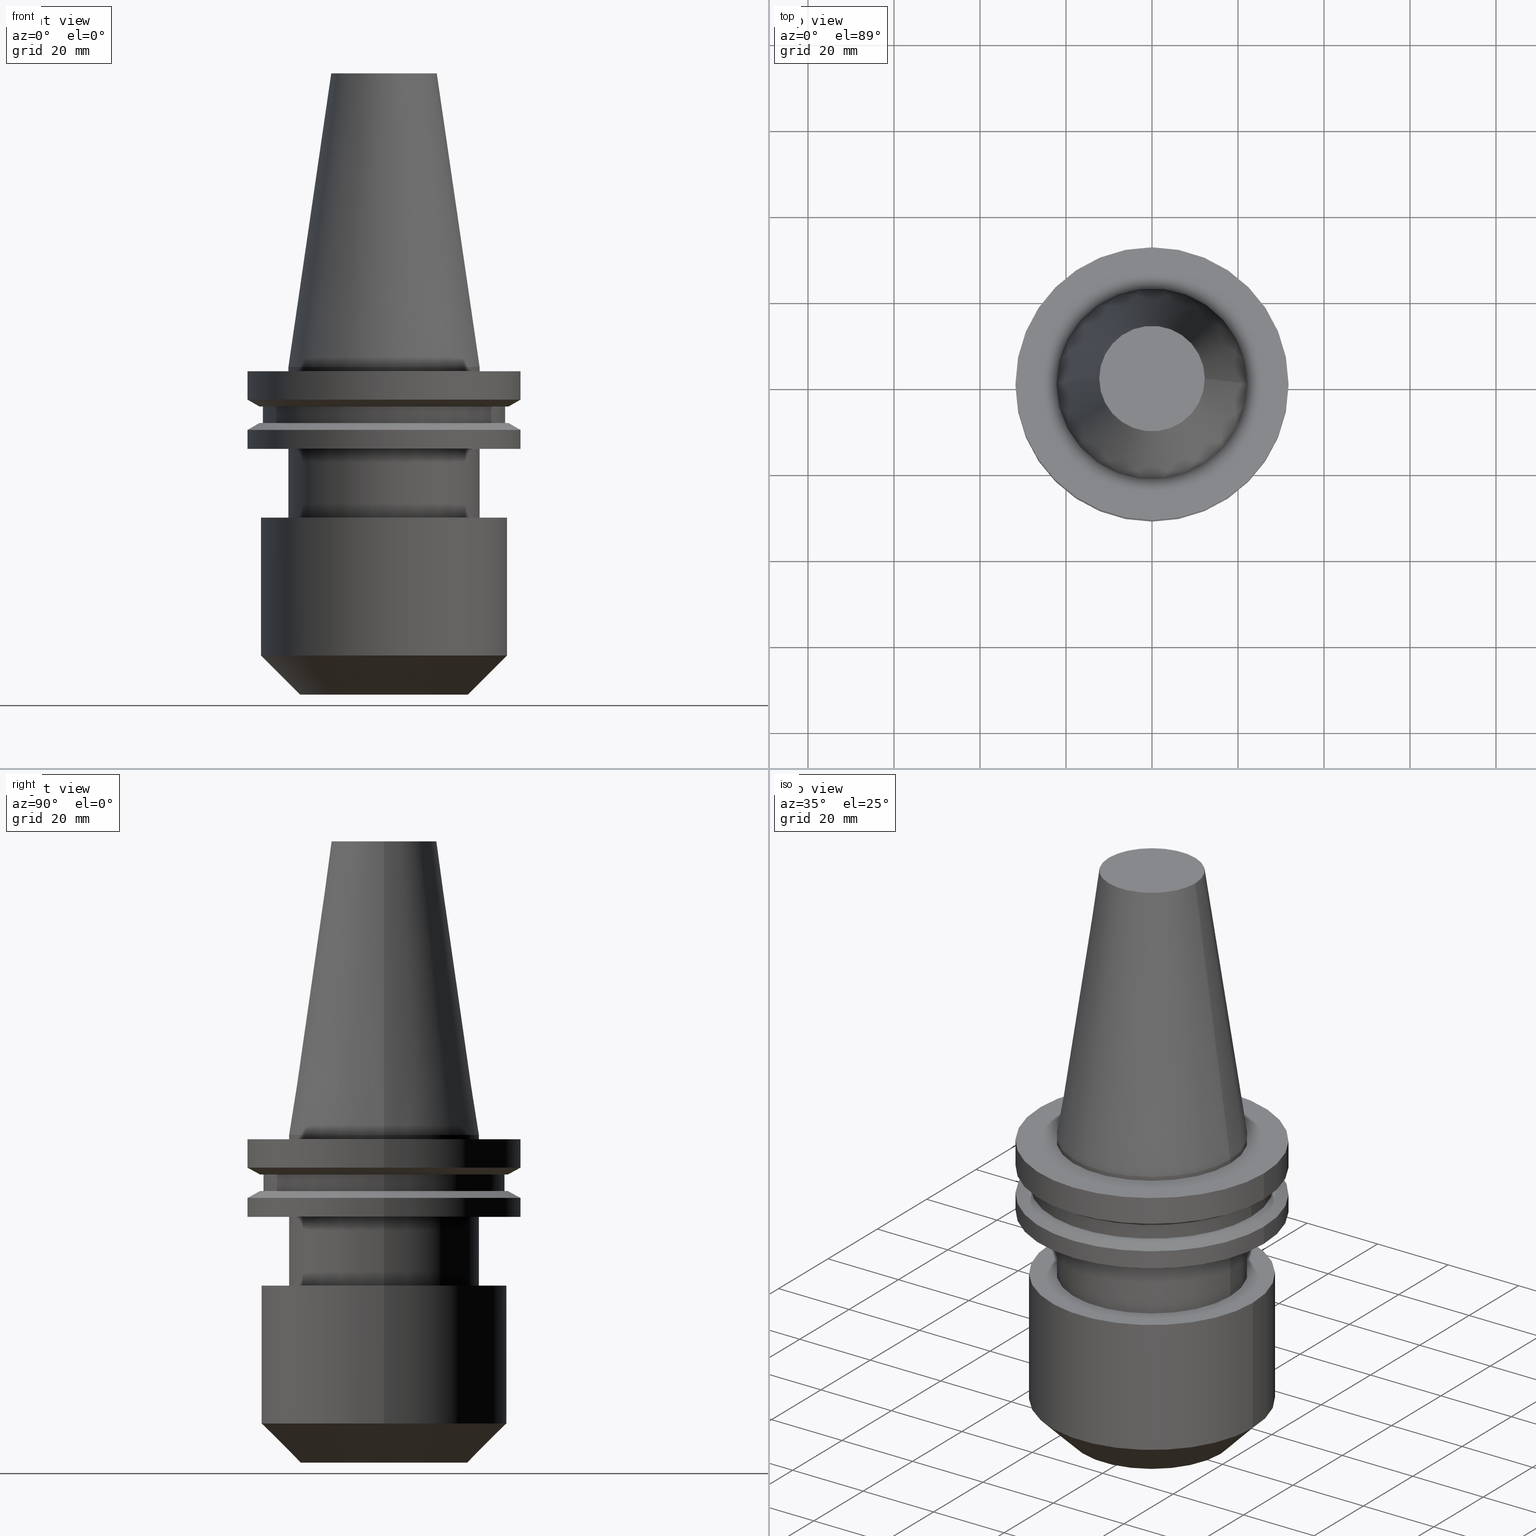
[diagram: canonical four-view strip — front | top / right | iso, engineering-drawing reading convention]
A machine part, canonical four-view strip (front | top / right | iso — engineering-drawing reading convention). The complete STEP part file that produces these views, byte-faithful:
ISO-10303-21;
HEADER;
FILE_DESCRIPTION (( 'STEP AP203' ),
    '1' );
FILE_NAME ('BCV40-EM_1_000-3.STEP',
    '2022-02-23T14:50:14',
    ( '' ),
    ( '' ),
    'SwSTEP 2.0',
    'SolidWorks 2021',
    '' );
FILE_SCHEMA (( 'CONFIG_CONTROL_DESIGN' ));
ENDSEC;

DATA;
#1 = DIRECTION ( 'NONE',  ( 1.000000000000000000, 0.000000000000000000, 0.000000000000000000 ) ) ;
#2 = ORIENTED_EDGE ( 'NONE', *, *, #613, .F. ) ;
#3 = CC_DESIGN_APPROVAL ( #452, ( #542 ) ) ;
#4 = EDGE_CURVE ( 'NONE', #633, #787, #122, .T. ) ;
#5 = CALENDAR_DATE ( 2022, 23, 2 ) ;
#6 = DIRECTION ( 'NONE',  ( -0.000000000000000000, -0.000000000000000000, 1.000000000000000000 ) ) ;
#7 = DIRECTION ( 'NONE',  ( 1.000000000000000000, 0.000000000000000000, 0.000000000000000000 ) ) ;
#8 = ORIENTED_EDGE ( 'NONE', *, *, #667, .F. ) ;
#9 = VECTOR ( 'NONE', #96, 1000.000000000000000 ) ;
#10 = LINE ( 'NONE', #189, #163 ) ;
#11 = CIRCLE ( 'NONE', #93, 28.60000000000000142 ) ;
#12 = CARTESIAN_POINT ( 'NONE',  ( 0.000000000000000000, 0.000000000000000000, 0.000000000000000000 ) ) ;
#13 = VERTEX_POINT ( 'NONE', #464 ) ;
#14 = DIRECTION ( 'NONE',  ( -0.000000000000000000, -0.000000000000000000, 1.000000000000000000 ) ) ;
#15 = EDGE_CURVE ( 'NONE', #500, #750, #730, .T. ) ;
#16 = CARTESIAN_POINT ( 'NONE',  ( 0.000000000000000000, 0.000000000000000000, 68.25000000000000000 ) ) ;
#17 = VERTEX_POINT ( 'NONE', #654 ) ;
#18 = DIRECTION ( 'NONE',  ( 0.000000000000000000, 0.000000000000000000, -1.000000000000000000 ) ) ;
#19 = FACE_OUTER_BOUND ( 'NONE', #149, .T. ) ;
#20 = EDGE_CURVE ( 'NONE', #368, #530, #157, .T. ) ;
#21 = VERTEX_POINT ( 'NONE', #722 ) ;
#22 = AXIS2_PLACEMENT_3D ( 'NONE', #12, #726, #205 ) ;
#23 = CARTESIAN_POINT ( 'NONE',  ( 0.000000000000000000, 0.000000000000000000, -9.204999999999991189 ) ) ;
#24 = CIRCLE ( 'NONE', #767, 12.69999999999999929 ) ;
#25 = DIRECTION ( 'NONE',  ( 1.000000000000000000, 0.000000000000000000, 0.000000000000000000 ) ) ;
#26 = APPLICATION_CONTEXT ( 'configuration controlled 3d designs of mechanical parts and assemblies' ) ;
#27 = EDGE_LOOP ( 'NONE', ( #358, #426, #43, #303 ) ) ;
#28 = CARTESIAN_POINT ( 'NONE',  ( 0.000000000000000000, 0.000000000000000000, -19.04999999999999716 ) ) ;
#29 = DIRECTION ( 'NONE',  ( -0.000000000000000000, -0.000000000000000000, 1.000000000000000000 ) ) ;
#30 = VERTEX_POINT ( 'NONE', #252 ) ;
#31 = EDGE_CURVE ( 'NONE', #13, #232, #587, .T. ) ;
#32 = FACE_OUTER_BOUND ( 'NONE', #214, .T. ) ;
#33 = CARTESIAN_POINT ( 'NONE',  ( 28.60000000000000142, 0.000000000000000000, 0.000000000000000000 ) ) ;
#34 = VERTEX_POINT ( 'NONE', #275 ) ;
#35 = DIRECTION ( 'NONE',  ( -0.000000000000000000, -0.000000000000000000, 1.000000000000000000 ) ) ;
#36 = CARTESIAN_POINT ( 'NONE',  ( 22.22500000000000142, 0.000000000000000000, 68.25000000000000000 ) ) ;
#37 = AXIS2_PLACEMENT_3D ( 'NONE', #469, #785, #131 ) ;
#38 = ADVANCED_FACE ( 'NONE', ( #665 ), #783, .F. ) ;
#39 = ORIENTED_EDGE ( 'NONE', *, *, #653, .T. ) ;
#40 = CIRCLE ( 'NONE', #228, 19.49999999999997158 ) ;
#41 = DIRECTION ( 'NONE',  ( -0.000000000000000000, -0.000000000000000000, 1.000000000000000000 ) ) ;
#42 = ADVANCED_FACE ( 'NONE', ( #325, #190 ), #671, .F. ) ;
#43 = ORIENTED_EDGE ( 'NONE', *, *, #197, .F. ) ;
#44 = LOCAL_TIME ( 8, 50, 14.00000000000000000, #196 ) ;
#45 = DIRECTION ( 'NONE',  ( 1.000000000000000000, 0.000000000000000000, 0.000000000000000000 ) ) ;
#46 = ORIENTED_EDGE ( 'NONE', *, *, #631, .F. ) ;
#47 = EDGE_CURVE ( 'NONE', #500, #641, #339, .T. ) ;
#48 = DIRECTION ( 'NONE',  ( -0.000000000000000000, -0.000000000000000000, 1.000000000000000000 ) ) ;
#49 = CARTESIAN_POINT ( 'NONE',  ( 0.000000000000000000, 0.000000000000000000, -1.000000000000000888 ) ) ;
#50 = ORIENTED_EDGE ( 'NONE', *, *, #95, .T. ) ;
#51 = AXIS2_PLACEMENT_3D ( 'NONE', #558, #356, #622 ) ;
#52 = AXIS2_PLACEMENT_3D ( 'NONE', #125, #6, #57 ) ;
#53 = DIRECTION ( 'NONE',  ( -0.000000000000000000, -0.000000000000000000, 1.000000000000000000 ) ) ;
#54 = DIRECTION ( 'NONE',  ( 0.000000000000000000, 0.000000000000000000, -1.000000000000000000 ) ) ;
#55 = ORIENTED_EDGE ( 'NONE', *, *, #631, .T. ) ;
#56 = EDGE_CURVE ( 'NONE', #34, #396, #808, .T. ) ;
#57 = DIRECTION ( 'NONE',  ( 1.000000000000000000, 0.000000000000000000, 0.000000000000000000 ) ) ;
#58 = LOCAL_TIME ( 8, 50, 14.00000000000000000, #74 ) ;
#59 = ORIENTED_EDGE ( 'NONE', *, *, #15, .F. ) ;
#60 = DIRECTION ( 'NONE',  ( 0.000000000000000000, -0.000000000000000000, 1.000000000000000000 ) ) ;
#61 = CARTESIAN_POINT ( 'NONE',  ( -28.17999999999999972, 3.451054679997241634E-15, 68.25000000000000000 ) ) ;
#62 = EDGE_LOOP ( 'NONE', ( #320, #138, #206, #491 ) ) ;
#63 = VECTOR ( 'NONE', #53, 1000.000000000000000 ) ;
#64 = APPROVAL_DATE_TIME ( #124, #155 ) ;
#65 = AXIS2_PLACEMENT_3D ( 'NONE', #811, #749, #166 ) ;
#66 = DIRECTION ( 'NONE',  ( 1.000000000000000000, 0.000000000000000000, 0.000000000000000000 ) ) ;
#67 = CARTESIAN_POINT ( 'NONE',  ( 0.000000000000000000, 0.000000000000000000, -76.20000000000000284 ) ) ;
#68 = PRODUCT_DEFINITION ( 'UNKNOWN', '', #542, #435 ) ;
#69 = ORIENTED_EDGE ( 'NONE', *, *, #115, .T. ) ;
#70 = DIRECTION ( 'NONE',  ( -0.000000000000000000, -0.000000000000000000, 1.000000000000000000 ) ) ;
#71 = CARTESIAN_POINT ( 'NONE',  ( 0.000000000000000000, 0.000000000000000000, 68.25000000000000000 ) ) ;
#72 = VERTEX_POINT ( 'NONE', #268 ) ;
#73 = EDGE_CURVE ( 'NONE', #723, #286, #251, .T. ) ;
#74 = COORDINATED_UNIVERSAL_TIME_OFFSET ( 6, 0, .BEHIND. ) ;
#75 = DIRECTION ( 'NONE',  ( -0.8660254037844387076, 0.000000000000000000, -0.4999999999999998890 ) ) ;
#76 = DIRECTION ( 'NONE',  ( 1.000000000000000000, 0.000000000000000000, 0.000000000000000000 ) ) ;
#77 = DIRECTION ( 'NONE',  ( 1.000000000000000000, 0.000000000000000000, 0.000000000000000000 ) ) ;
#78 = VECTOR ( 'NONE', #302, 1000.000000000000000 ) ;
#79 = DIRECTION ( 'NONE',  ( -0.000000000000000000, -0.000000000000000000, 1.000000000000000000 ) ) ;
#80 = ORIENTED_EDGE ( 'NONE', *, *, #411, .T. ) ;
#81 = CYLINDRICAL_SURFACE ( 'NONE', #51, 12.69999999999999929 ) ;
#82 = EDGE_CURVE ( 'NONE', #361, #723, #338, .T. ) ;
#83 = DIRECTION ( 'NONE',  ( -0.000000000000000000, -0.000000000000000000, 1.000000000000000000 ) ) ;
#84 = ORIENTED_EDGE ( 'NONE', *, *, #823, .T. ) ;
#85 = AXIS2_PLACEMENT_3D ( 'NONE', #110, #374, #772 ) ;
#86 = DIRECTION ( 'NONE',  ( 1.000000000000000000, 0.000000000000000000, 0.000000000000000000 ) ) ;
#87 = CARTESIAN_POINT ( 'NONE',  ( 12.69999999999999929, 0.000000000000000000, -35.04999999999999716 ) ) ;
#88 = ORIENTED_EDGE ( 'NONE', *, *, #769, .F. ) ;
#89 = AXIS2_PLACEMENT_3D ( 'NONE', #67, #137, #330 ) ;
#90 = CARTESIAN_POINT ( 'NONE',  ( 28.97919780457007732, 0.000000000000000000, -9.205000000000005400 ) ) ;
#91 = AXIS2_PLACEMENT_3D ( 'NONE', #309, #229, #99 ) ;
#92 = DIRECTION ( 'NONE',  ( 0.8660254037844387076, 1.060575238724906915E-16, -0.4999999999999998890 ) ) ;
#93 = AXIS2_PLACEMENT_3D ( 'NONE', #850, #533, #454 ) ;
#94 = ORIENTED_EDGE ( 'NONE', *, *, #497, .T. ) ;
#95 = EDGE_CURVE ( 'NONE', #17, #735, #668, .T. ) ;
#96 = DIRECTION ( 'NONE',  ( 0.8660254037844389297, 0.000000000000000000, 0.4999999999999995004 ) ) ;
#97 = FACE_OUTER_BOUND ( 'NONE', #635, .T. ) ;
#98 = VERTEX_POINT ( 'NONE', #459 ) ;
#99 = DIRECTION ( 'NONE',  ( 1.000000000000000000, 0.000000000000000000, 0.000000000000000000 ) ) ;
#100 = LINE ( 'NONE', #36, #419 ) ;
#101 = ORIENTED_EDGE ( 'NONE', *, *, #840, .F. ) ;
#102 = CARTESIAN_POINT ( 'NONE',  ( -31.75000000000000000, 3.888253587292846476E-15, 68.25000000000000000 ) ) ;
#103 = EDGE_CURVE ( 'NONE', #21, #456, #446, .T. ) ;
#104 = LINE ( 'NONE', #363, #78 ) ;
#105 = ORIENTED_EDGE ( 'NONE', *, *, #433, .F. ) ;
#106 = DIRECTION ( 'NONE',  ( -0.000000000000000000, -0.000000000000000000, 1.000000000000000000 ) ) ;
#107 = ADVANCED_FACE ( 'NONE', ( #534 ), #792, .T. ) ;
#108 = DIRECTION ( 'NONE',  ( -0.000000000000000000, -0.000000000000000000, 1.000000000000000000 ) ) ;
#109 = ORIENTED_EDGE ( 'NONE', *, *, #784, .F. ) ;
#110 = CARTESIAN_POINT ( 'NONE',  ( 0.000000000000000000, 0.000000000000000000, 0.000000000000000000 ) ) ;
#111 = DIRECTION ( 'NONE',  ( 0.000000000000000000, 0.000000000000000000, -1.000000000000000000 ) ) ;
#112 = ORIENTED_EDGE ( 'NONE', *, *, #526, .T. ) ;
#113 = DIRECTION ( 'NONE',  ( -1.000000000000000000, 0.000000000000000000, 0.000000000000000000 ) ) ;
#114 = ORIENTED_EDGE ( 'NONE', *, *, #359, .T. ) ;
#115 = EDGE_CURVE ( 'NONE', #570, #696, #560, .T. ) ;
#116 = AXIS2_PLACEMENT_3D ( 'NONE', #623, #804, #223 ) ;
#117 = AXIS2_PLACEMENT_3D ( 'NONE', #747, #212, #341 ) ;
#118 = PERSON_AND_ORGANIZATION_ROLE ( 'creator' ) ;
#119 = FACE_OUTER_BOUND ( 'NONE', #372, .T. ) ;
#120 = ORIENTED_EDGE ( 'NONE', *, *, #411, .F. ) ;
#121 = FACE_OUTER_BOUND ( 'NONE', #584, .T. ) ;
#122 = LINE ( 'NONE', #133, #475 ) ;
#123 = ORIENTED_EDGE ( 'NONE', *, *, #796, .F. ) ;
#124 = DATE_AND_TIME ( #5, #317 ) ;
#125 = CARTESIAN_POINT ( 'NONE',  ( 0.000000000000000000, 0.000000000000000000, -7.605276606597335842 ) ) ;
#126 = EDGE_CURVE ( 'NONE', #819, #13, #791, .T. ) ;
#127 = CARTESIAN_POINT ( 'NONE',  ( -12.69999999999999929, 1.555301434917138433E-15, 0.000000000000000000 ) ) ;
#128 = ORIENTED_EDGE ( 'NONE', *, *, #571, .F. ) ;
#129 = VECTOR ( 'NONE', #438, 1000.000000000000000 ) ;
#130 = PERSON_AND_ORGANIZATION ( #547, #802 ) ;
#131 = DIRECTION ( 'NONE',  ( 1.000000000000000000, 0.000000000000000000, 0.000000000000000000 ) ) ;
#132 = EDGE_CURVE ( 'NONE', #456, #21, #778, .T. ) ;
#133 = CARTESIAN_POINT ( 'NONE',  ( 19.49999999999997158, 0.000000000000000000, -76.20000000000000284 ) ) ;
#134 = ORIENTED_EDGE ( 'NONE', *, *, #132, .T. ) ;
#135 = CALENDAR_DATE ( 2022, 23, 2 ) ;
#136 = DIRECTION ( 'NONE',  ( -0.000000000000000000, -0.000000000000000000, 1.000000000000000000 ) ) ;
#137 = DIRECTION ( 'NONE',  ( -0.000000000000000000, -0.000000000000000000, 1.000000000000000000 ) ) ;
#138 = ORIENTED_EDGE ( 'NONE', *, *, #840, .T. ) ;
#139 = CARTESIAN_POINT ( 'NONE',  ( -22.22500000000000142, 0.000000000000000000, 0.000000000000000000 ) ) ;
#140 = DIRECTION ( 'NONE',  ( 1.000000000000000000, 0.000000000000000000, 0.000000000000000000 ) ) ;
#141 = VERTEX_POINT ( 'NONE', #401 ) ;
#142 = AXIS2_PLACEMENT_3D ( 'NONE', #529, #208, #1 ) ;
#143 = CC_DESIGN_DATE_AND_TIME_ASSIGNMENT ( #385, #854, ( #68 ) ) ;
#144 = AXIS2_PLACEMENT_3D ( 'NONE', #733, #291, #77 ) ;
#145 = CARTESIAN_POINT ( 'NONE',  ( 28.17999999999999972, 0.000000000000000000, -9.204999999999991189 ) ) ;
#146 = AXIS2_PLACEMENT_3D ( 'NONE', #333, #70, #379 ) ;
#147 = DIRECTION ( 'NONE',  ( 1.000000000000000000, 0.000000000000000000, 0.000000000000000000 ) ) ;
#148 = AXIS2_PLACEMENT_3D ( 'NONE', #151, #412, #342 ) ;
#149 = EDGE_LOOP ( 'NONE', ( #105, #69, #437, #557 ) ) ;
#150 = LINE ( 'NONE', #222, #187 ) ;
#151 = CARTESIAN_POINT ( 'NONE',  ( 0.000000000000000000, 0.000000000000000000, 68.25000000000000000 ) ) ;
#152 = ORIENTED_EDGE ( 'NONE', *, *, #720, .F. ) ;
#153 = APPROVAL_PERSON_ORGANIZATION ( #130, #155, #257 ) ;
#154 = LINE ( 'NONE', #139, #492 ) ;
#155 = APPROVAL ( #183, 'UNSPECIFIED' ) ;
#156 = DIRECTION ( 'NONE',  ( 1.000000000000000000, 0.000000000000000000, 0.000000000000000000 ) ) ;
#157 = CIRCLE ( 'NONE', #173, 12.27178102086201150 ) ;
#158 = EDGE_LOOP ( 'NONE', ( #755, #444 ) ) ;
#159 = AXIS2_PLACEMENT_3D ( 'NONE', #483, #277, #156 ) ;
#160 = DIRECTION ( 'NONE',  ( -0.000000000000000000, -0.000000000000000000, 1.000000000000000000 ) ) ;
#161 = AXIS2_PLACEMENT_3D ( 'NONE', #28, #606, #678 ) ;
#162 = FACE_BOUND ( 'NONE', #600, .T. ) ;
#163 = VECTOR ( 'NONE', #136, 1000.000000000000000 ) ;
#164 = EDGE_LOOP ( 'NONE', ( #746, #596, #727, #2 ) ) ;
#165 = LINE ( 'NONE', #102, #465 ) ;
#166 = DIRECTION ( 'NONE',  ( 1.000000000000000000, 0.000000000000000000, 0.000000000000000000 ) ) ;
#167 = ORIENTED_EDGE ( 'NONE', *, *, #506, .T. ) ;
#168 = EDGE_CURVE ( 'NONE', #787, #474, #230, .T. ) ;
#169 = LOCAL_TIME ( 8, 50, 14.00000000000000000, #719 ) ;
#170 = CARTESIAN_POINT ( 'NONE',  ( 31.74999999999999289, 0.000000000000000000, -19.04999999999999716 ) ) ;
#171 = DIRECTION ( 'NONE',  ( -0.000000000000000000, -0.000000000000000000, 1.000000000000000000 ) ) ;
#172 = ORIENTED_EDGE ( 'NONE', *, *, #221, .T. ) ;
#173 = AXIS2_PLACEMENT_3D ( 'NONE', #71, #849, #7 ) ;
#174 = ADVANCED_FACE ( 'NONE', ( #424, #162 ), #684, .F. ) ;
#175 = CARTESIAN_POINT ( 'NONE',  ( 0.000000000000000000, 0.000000000000000000, 68.25000000000000000 ) ) ;
#176 = AXIS2_PLACEMENT_3D ( 'NONE', #817, #160, #86 ) ;
#177 = ORIENTED_EDGE ( 'NONE', *, *, #103, .F. ) ;
#178 = DIRECTION ( 'NONE',  ( -0.8660254037844389297, 1.060575238724907285E-16, 0.4999999999999995004 ) ) ;
#179 = VERTEX_POINT ( 'NONE', #757 ) ;
#180 = DIRECTION ( 'NONE',  ( 1.000000000000000000, 0.000000000000000000, 0.000000000000000000 ) ) ;
#181 = EDGE_CURVE ( 'NONE', #641, #500, #269, .T. ) ;
#182 = ORIENTED_EDGE ( 'NONE', *, *, #56, .F. ) ;
#183 = APPROVAL_STATUS ( 'not_yet_approved' ) ;
#184 = CARTESIAN_POINT ( 'NONE',  ( 12.69999999999999929, 0.000000000000000000, 0.000000000000000000 ) ) ;
#185 = ORIENTED_EDGE ( 'NONE', *, *, #680, .F. ) ;
#186 = AXIS2_PLACEMENT_3D ( 'NONE', #318, #585, #715 ) ;
#187 = VECTOR ( 'NONE', #485, 999.9999999999998863 ) ;
#188 = SHAPE_DEFINITION_REPRESENTATION ( #380, #292 ) ;
#189 = CARTESIAN_POINT ( 'NONE',  ( -22.22500000000000142, 2.721777511104992849E-15, 68.25000000000000000 ) ) ;
#190 = FACE_OUTER_BOUND ( 'NONE', #580, .T. ) ;
#191 = EDGE_LOOP ( 'NONE', ( #224, #227 ) ) ;
#192 = ADVANCED_FACE ( 'NONE', ( #415 ), #688, .T. ) ;
#193 = FACE_BOUND ( 'NONE', #347, .T. ) ;
#194 = DIRECTION ( 'NONE',  ( -0.000000000000000000, -0.000000000000000000, 1.000000000000000000 ) ) ;
#195 = VERTEX_POINT ( 'NONE', #615 ) ;
#196 = COORDINATED_UNIVERSAL_TIME_OFFSET ( 6, 0, .BEHIND. ) ;
#197 = EDGE_CURVE ( 'NONE', #777, #141, #311, .T. ) ;
#198 = CARTESIAN_POINT ( 'NONE',  ( 28.60000000000000142, 0.000000000000000000, -35.04999999999999716 ) ) ;
#199 = CARTESIAN_POINT ( 'NONE',  ( 31.75000000000000000, 0.000000000000000000, 68.25000000000000000 ) ) ;
#200 = ORIENTED_EDGE ( 'NONE', *, *, #126, .F. ) ;
#201 = AXIS2_PLACEMENT_3D ( 'NONE', #400, #225, #488 ) ;
#202 = AXIS2_PLACEMENT_3D ( 'NONE', #293, #620, #495 ) ;
#203 = AXIS2_PLACEMENT_3D ( 'NONE', #273, #528, #390 ) ;
#204 = CARTESIAN_POINT ( 'NONE',  ( 0.000000000000000000, 0.000000000000000000, 68.25000000000000000 ) ) ;
#205 = DIRECTION ( 'NONE',  ( 1.000000000000000000, 0.000000000000000000, 0.000000000000000000 ) ) ;
#206 = ORIENTED_EDGE ( 'NONE', *, *, #4, .T. ) ;
#207 = FACE_BOUND ( 'NONE', #246, .T. ) ;
#208 = DIRECTION ( 'NONE',  ( -0.000000000000000000, -0.000000000000000000, 1.000000000000000000 ) ) ;
#209 = APPROVAL_PERSON_ORGANIZATION ( #522, #452, #266 ) ;
#210 = ADVANCED_FACE ( 'NONE', ( #357 ), #436, .T. ) ;
#211 = ORIENTED_EDGE ( 'NONE', *, *, #382, .T. ) ;
#212 = DIRECTION ( 'NONE',  ( -0.000000000000000000, -0.000000000000000000, 1.000000000000000000 ) ) ;
#213 = DIRECTION ( 'NONE',  ( 1.000000000000000000, 0.000000000000000000, 0.000000000000000000 ) ) ;
#214 = EDGE_LOOP ( 'NONE', ( #831, #312 ) ) ;
#215 = VECTOR ( 'NONE', #798, 1000.000000000000000 ) ;
#216 = CIRCLE ( 'NONE', #176, 31.75000000000000000 ) ;
#217 = DIRECTION ( 'NONE',  ( -0.000000000000000000, -0.000000000000000000, 1.000000000000000000 ) ) ;
#218 = VECTOR ( 'NONE', #92, 1000.000000000000000 ) ;
#219 = LINE ( 'NONE', #543, #218 ) ;
#220 = EDGE_LOOP ( 'NONE', ( #774, #659 ) ) ;
#221 = EDGE_CURVE ( 'NONE', #735, #13, #219, .T. ) ;
#222 = CARTESIAN_POINT ( 'NONE',  ( 22.22500000000000142, 2.721777511104992849E-15, 0.000000000000000000 ) ) ;
#223 = DIRECTION ( 'NONE',  ( -1.000000000000000000, 0.000000000000000000, -0.000000000000000000 ) ) ;
#224 = ORIENTED_EDGE ( 'NONE', *, *, #181, .F. ) ;
#225 = DIRECTION ( 'NONE',  ( -0.000000000000000000, -0.000000000000000000, 1.000000000000000000 ) ) ;
#226 = CARTESIAN_POINT ( 'NONE',  ( -28.60000000000000142, 3.502489845561430207E-15, -67.10000000000000853 ) ) ;
#227 = ORIENTED_EDGE ( 'NONE', *, *, #47, .F. ) ;
#228 = AXIS2_PLACEMENT_3D ( 'NONE', #299, #41, #509 ) ;
#229 = DIRECTION ( 'NONE',  ( -0.000000000000000000, -0.000000000000000000, 1.000000000000000000 ) ) ;
#230 = LINE ( 'NONE', #33, #308 ) ;
#231 = CIRCLE ( 'NONE', #602, 22.22500000000000142 ) ;
#232 = VERTEX_POINT ( 'NONE', #349 ) ;
#233 = CARTESIAN_POINT ( 'NONE',  ( 0.000000000000000000, 0.000000000000000000, 68.25000000000000000 ) ) ;
#234 = CARTESIAN_POINT ( 'NONE',  ( 0.000000000000000000, 0.000000000000000000, 0.000000000000000000 ) ) ;
#235 = EDGE_LOOP ( 'NONE', ( #682, #732, #758, #377 ) ) ;
#236 = ADVANCED_FACE ( 'NONE', ( #611, #97 ), #745, .F. ) ;
#237 = CYLINDRICAL_SURFACE ( 'NONE', #242, 22.22500000000000142 ) ;
#238 = CARTESIAN_POINT ( 'NONE',  ( 12.27178102086201150, 2.112318622904291439E-15, 68.25000000000000000 ) ) ;
#239 = EDGE_LOOP ( 'NONE', ( #327, #101 ) ) ;
#240 = LINE ( 'NONE', #835, #63 ) ;
#241 = CARTESIAN_POINT ( 'NONE',  ( -28.97919780457007732, 3.548928183322474856E-15, -9.205000000000005400 ) ) ;
#242 = AXIS2_PLACEMENT_3D ( 'NONE', #233, #35, #493 ) ;
#243 = ORIENTED_EDGE ( 'NONE', *, *, #532, .T. ) ;
#244 = ADVANCED_FACE ( 'NONE', ( #354 ), #576, .T. ) ;
#245 = DIRECTION ( 'NONE',  ( -0.000000000000000000, -0.000000000000000000, 1.000000000000000000 ) ) ;
#246 = EDGE_LOOP ( 'NONE', ( #553, #689 ) ) ;
#247 = DIRECTION ( 'NONE',  ( -0.000000000000000000, -0.000000000000000000, 1.000000000000000000 ) ) ;
#248 = EDGE_LOOP ( 'NONE', ( #39, #740, #505, #200 ) ) ;
#249 = PERSON_AND_ORGANIZATION_ROLE ( 'classification_officer' ) ;
#250 = CARTESIAN_POINT ( 'NONE',  ( 0.000000000000000000, 22.22499999999999787, -35.04999999999999716 ) ) ;
#251 = CIRCLE ( 'NONE', #295, 12.69999999999999929 ) ;
#252 = CARTESIAN_POINT ( 'NONE',  ( 22.22500000000000142, 0.000000000000000000, -1.000000000000000888 ) ) ;
#253 = AXIS2_PLACEMENT_3D ( 'NONE', #288, #410, #353 ) ;
#254 = EDGE_CURVE ( 'NONE', #517, #294, #289, .T. ) ;
#255 = CONICAL_SURFACE ( 'NONE', #364, 31.75000000000000000, 1.047197551196597853 ) ;
#256 = CIRCLE ( 'NONE', #742, 28.17999999999999972 ) ;
#257 = APPROVAL_ROLE ( '' ) ;
#258 = CARTESIAN_POINT ( 'NONE',  ( 0.000000000000000000, 0.000000000000000000, -19.04999999999999716 ) ) ;
#259 = DIRECTION ( 'NONE',  ( 1.000000000000000000, 0.000000000000000000, 0.000000000000000000 ) ) ;
#260 = ORIENTED_EDGE ( 'NONE', *, *, #458, .F. ) ;
#261 = ADVANCED_FACE ( 'NONE', ( #19 ), #782, .T. ) ;
#262 = PERSON_AND_ORGANIZATION ( #547, #802 ) ;
#263 = PLANE ( 'NONE',  #670 ) ;
#264 = DIRECTION ( 'NONE',  ( -1.000000000000000000, 0.000000000000000000, -0.000000000000000000 ) ) ;
#265 = ORIENTED_EDGE ( 'NONE', *, *, #497, .F. ) ;
#266 = APPROVAL_ROLE ( '' ) ;
#267 = DIRECTION ( 'NONE',  ( 1.000000000000000000, 0.000000000000000000, 0.000000000000000000 ) ) ;
#268 = CARTESIAN_POINT ( 'NONE',  ( -22.22500000000000142, 2.721777511104992849E-15, -1.000000000000000888 ) ) ;
#269 = CIRCLE ( 'NONE', #752, 28.17999999999999972 ) ;
#270 = ORIENTED_EDGE ( 'NONE', *, *, #95, .F. ) ;
#271 = CIRCLE ( 'NONE', #161, 31.74999999999999289 ) ;
#272 = AXIS2_PLACEMENT_3D ( 'NONE', #204, #661, #729 ) ;
#273 = CARTESIAN_POINT ( 'NONE',  ( 0.000000000000000000, 0.000000000000000000, 68.25000000000000000 ) ) ;
#274 = ADVANCED_FACE ( 'NONE', ( #477 ), #681, .T. ) ;
#275 = CARTESIAN_POINT ( 'NONE',  ( 22.22500000000000142, 0.000000000000000000, -35.04999999999999716 ) ) ;
#276 = DIRECTION ( 'NONE',  ( -0.1443082272672999711, 0.000000000000000000, -0.9895327864921755756 ) ) ;
#277 = DIRECTION ( 'NONE',  ( 0.000000000000000000, -0.000000000000000000, 1.000000000000000000 ) ) ;
#278 = CC_DESIGN_APPROVAL ( #806, ( #636 ) ) ;
#279 = ORIENTED_EDGE ( 'NONE', *, *, #324, .T. ) ;
#280 = DIRECTION ( 'NONE',  ( -1.000000000000000000, 0.000000000000000000, -0.000000000000000000 ) ) ;
#281 = CARTESIAN_POINT ( 'NONE',  ( 0.000000000000000000, 0.000000000000000000, -7.605276606597335842 ) ) ;
#282 = ORIENTED_EDGE ( 'NONE', *, *, #350, .T. ) ;
#283 = EDGE_CURVE ( 'NONE', #750, #655, #256, .T. ) ;
#284 = FACE_BOUND ( 'NONE', #158, .T. ) ;
#285 = CARTESIAN_POINT ( 'NONE',  ( 0.000000000000000000, 0.000000000000000000, -13.05499999999999794 ) ) ;
#286 = VERTEX_POINT ( 'NONE', #87 ) ;
#287 = ADVANCED_FACE ( 'NONE', ( #486 ), #502, .T. ) ;
#288 = CARTESIAN_POINT ( 'NONE',  ( 0.000000000000000000, 0.000000000000000000, 68.25000000000000000 ) ) ;
#289 = LINE ( 'NONE', #346, #839 ) ;
#290 = ORIENTED_EDGE ( 'NONE', *, *, #685, .F. ) ;
#291 = DIRECTION ( 'NONE',  ( 0.000000000000000000, -0.000000000000000000, 1.000000000000000000 ) ) ;
#292 = ADVANCED_BREP_SHAPE_REPRESENTATION ( 'BCV40-EM_1_000-3', ( #762, #85 ), #369 ) ;
#293 = CARTESIAN_POINT ( 'NONE',  ( 0.000000000000000000, 0.000000000000000000, 0.000000000000000000 ) ) ;
#294 = VERTEX_POINT ( 'NONE', #226 ) ;
#295 = AXIS2_PLACEMENT_3D ( 'NONE', #595, #852, #259 ) ;
#296 = CIRCLE ( 'NONE', #272, 12.27178102086201150 ) ;
#297 = DIRECTION ( 'NONE',  ( 0.000000000000000000, 0.000000000000000000, -1.000000000000000000 ) ) ;
#298 = ADVANCED_FACE ( 'NONE', ( #753 ), #824, .T. ) ;
#299 = CARTESIAN_POINT ( 'NONE',  ( 0.000000000000000000, 0.000000000000000000, -76.20000000000000284 ) ) ;
#300 = AXIS2_PLACEMENT_3D ( 'NONE', #638, #499, #180 ) ;
#301 = EDGE_LOOP ( 'NONE', ( #833, #536 ) ) ;
#302 = DIRECTION ( 'NONE',  ( -0.000000000000000000, -0.000000000000000000, 1.000000000000000000 ) ) ;
#303 = ORIENTED_EDGE ( 'NONE', *, *, #693, .F. ) ;
#304 = DIRECTION ( 'NONE',  ( -0.000000000000000000, -0.000000000000000000, 1.000000000000000000 ) ) ;
#305 = FACE_OUTER_BOUND ( 'NONE', #771, .T. ) ;
#306 = ORIENTED_EDGE ( 'NONE', *, *, #571, .T. ) ;
#307 = ADVANCED_FACE ( 'NONE', ( #440 ), #255, .T. ) ;
#308 = VECTOR ( 'NONE', #815, 1000.000000000000000 ) ;
#309 = CARTESIAN_POINT ( 'NONE',  ( 0.000000000000000000, 0.000000000000000000, -76.20000000000000284 ) ) ;
#310 = PLANE ( 'NONE',  #781 ) ;
#311 = CIRCLE ( 'NONE', #827, 31.75000000000000000 ) ;
#312 = ORIENTED_EDGE ( 'NONE', *, *, #613, .T. ) ;
#313 = FACE_OUTER_BOUND ( 'NONE', #421, .T. ) ;
#314 = DIRECTION ( 'NONE',  ( 1.000000000000000000, 0.000000000000000000, 0.000000000000000000 ) ) ;
#315 = ORIENTED_EDGE ( 'NONE', *, *, #685, .T. ) ;
#316 = CALENDAR_DATE ( 2022, 23, 2 ) ;
#317 = LOCAL_TIME ( 8, 50, 14.00000000000000000, #453 ) ;
#318 = CARTESIAN_POINT ( 'NONE',  ( 0.000000000000000000, 0.000000000000000000, -35.04999999999999716 ) ) ;
#319 = ADVANCED_FACE ( 'NONE', ( #773 ), #797, .T. ) ;
#320 = ORIENTED_EDGE ( 'NONE', *, *, #254, .F. ) ;
#321 = AXIS2_PLACEMENT_3D ( 'NONE', #599, #590, #264 ) ;
#322 = DIRECTION ( 'NONE',  ( 1.000000000000000000, 0.000000000000000000, 0.000000000000000000 ) ) ;
#323 = AXIS2_PLACEMENT_3D ( 'NONE', #539, #334, #734 ) ;
#324 = EDGE_CURVE ( 'NONE', #72, #30, #605, .T. ) ;
#325 = FACE_BOUND ( 'NONE', #220, .T. ) ;
#326 = CIRCLE ( 'NONE', #644, 28.17999999999999972 ) ;
#327 = ORIENTED_EDGE ( 'NONE', *, *, #392, .F. ) ;
#328 = PERSON_AND_ORGANIZATION_ROLE ( 'design_owner' ) ;
#329 = FACE_OUTER_BOUND ( 'NONE', #612, .T. ) ;
#330 = DIRECTION ( 'NONE',  ( 1.000000000000000000, 0.000000000000000000, 0.000000000000000000 ) ) ;
#331 = EDGE_LOOP ( 'NONE', ( #335, #430, #343, #647 ) ) ;
#332 = CALENDAR_DATE ( 2022, 23, 2 ) ;
#333 = CARTESIAN_POINT ( 'NONE',  ( 0.000000000000000000, 0.000000000000000000, 0.000000000000000000 ) ) ;
#334 = DIRECTION ( 'NONE',  ( 0.000000000000000000, 0.000000000000000000, -1.000000000000000000 ) ) ;
#335 = ORIENTED_EDGE ( 'NONE', *, *, #607, .F. ) ;
#336 = ADVANCED_FACE ( 'NONE', ( #443 ), #310, .F. ) ;
#337 = PLANE ( 'NONE',  #711 ) ;
#338 = LINE ( 'NONE', #127, #822 ) ;
#339 = CIRCLE ( 'NONE', #642, 28.17999999999999972 ) ;
#340 = CIRCLE ( 'NONE', #117, 12.69999999999999929 ) ;
#341 = DIRECTION ( 'NONE',  ( 1.000000000000000000, 0.000000000000000000, 0.000000000000000000 ) ) ;
#342 = DIRECTION ( 'NONE',  ( 1.000000000000000000, 0.000000000000000000, 0.000000000000000000 ) ) ;
#343 = ORIENTED_EDGE ( 'NONE', *, *, #73, .T. ) ;
#344 = CARTESIAN_POINT ( 'NONE',  ( 28.97919780457008088, 3.718590885307660666E-15, -13.05499999999999794 ) ) ;
#345 = EDGE_CURVE ( 'NONE', #30, #72, #231, .T. ) ;
#346 = CARTESIAN_POINT ( 'NONE',  ( -19.49999999999997158, 2.388061258337335389E-15, -76.20000000000000284 ) ) ;
#347 = EDGE_LOOP ( 'NONE', ( #134, #545 ) ) ;
#348 = DIRECTION ( 'NONE',  ( 1.000000000000000000, 0.000000000000000000, 0.000000000000000000 ) ) ;
#349 = CARTESIAN_POINT ( 'NONE',  ( -31.75000000000000000, 3.888253587292846476E-15, -14.65472339340266572 ) ) ;
#350 = EDGE_CURVE ( 'NONE', #777, #574, #770, .T. ) ;
#351 = ORIENTED_EDGE ( 'NONE', *, *, #643, .T. ) ;
#352 = VECTOR ( 'NONE', #701, 1000.000000000000000 ) ;
#353 = DIRECTION ( 'NONE',  ( 1.000000000000000000, 0.000000000000000000, 0.000000000000000000 ) ) ;
#354 = FACE_OUTER_BOUND ( 'NONE', #812, .T. ) ;
#355 = ORIENTED_EDGE ( 'NONE', *, *, #283, .T. ) ;
#356 = DIRECTION ( 'NONE',  ( -0.000000000000000000, -0.000000000000000000, 1.000000000000000000 ) ) ;
#357 = FACE_OUTER_BOUND ( 'NONE', #235, .T. ) ;
#358 = ORIENTED_EDGE ( 'NONE', *, *, #399, .T. ) ;
#359 = EDGE_CURVE ( 'NONE', #787, #294, #741, .T. ) ;
#360 = DIRECTION ( 'NONE',  ( 0.000000000000000000, 0.000000000000000000, -1.000000000000000000 ) ) ;
#361 = VERTEX_POINT ( 'NONE', #691 ) ;
#362 = CIRCLE ( 'NONE', #828, 28.60000000000000142 ) ;
#363 = CARTESIAN_POINT ( 'NONE',  ( 22.22500000000000142, 0.000000000000000000, 68.25000000000000000 ) ) ;
#364 = AXIS2_PLACEMENT_3D ( 'NONE', #375, #360, #702 ) ;
#365 = ORIENTED_EDGE ( 'NONE', *, *, #345, .T. ) ;
#366 = CARTESIAN_POINT ( 'NONE',  ( 0.000000000000000000, 0.000000000000000000, 0.000000000000000000 ) ) ;
#367 = ADVANCED_FACE ( 'NONE', ( #634 ), #646, .T. ) ;
#368 = VERTEX_POINT ( 'NONE', #238 ) ;
#369 =( GEOMETRIC_REPRESENTATION_CONTEXT ( 3 ) GLOBAL_UNCERTAINTY_ASSIGNED_CONTEXT ( ( #425 ) ) GLOBAL_UNIT_ASSIGNED_CONTEXT ( ( #432, #511, #841 ) ) REPRESENTATION_CONTEXT ( 'NONE', 'WORKASPACE' ) );
#370 = DIRECTION ( 'NONE',  ( -1.000000000000000000, 0.000000000000000000, 0.000000000000000000 ) ) ;
#371 = DIRECTION ( 'NONE',  ( 1.000000000000000000, 0.000000000000000000, 0.000000000000000000 ) ) ;
#372 = EDGE_LOOP ( 'NONE', ( #365, #692, #290, #381 ) ) ;
#373 = EDGE_CURVE ( 'NONE', #617, #286, #842, .T. ) ;
#374 = DIRECTION ( 'NONE',  ( 0.000000000000000000, 0.000000000000000000, 1.000000000000000000 ) ) ;
#375 = CARTESIAN_POINT ( 'NONE',  ( 0.000000000000000000, 0.000000000000000000, -14.65472339340266572 ) ) ;
#376 = AXIS2_PLACEMENT_3D ( 'NONE', #637, #106, #563 ) ;
#377 = ORIENTED_EDGE ( 'NONE', *, *, #4, .F. ) ;
#378 = CIRCLE ( 'NONE', #186, 12.69999999999999929 ) ;
#379 = DIRECTION ( 'NONE',  ( 1.000000000000000000, 0.000000000000000000, 0.000000000000000000 ) ) ;
#380 = PRODUCT_DEFINITION_SHAPE ( 'NONE', 'NONE',  #68 ) ;
#381 = ORIENTED_EDGE ( 'NONE', *, *, #382, .F. ) ;
#382 = EDGE_CURVE ( 'NONE', #30, #621, #100, .T. ) ;
#383 = DIRECTION ( 'NONE',  ( 1.000000000000000000, 0.000000000000000000, 0.000000000000000000 ) ) ;
#384 = DIRECTION ( 'NONE',  ( -0.000000000000000000, -0.000000000000000000, 1.000000000000000000 ) ) ;
#385 = DATE_AND_TIME ( #581, #58 ) ;
#386 = CARTESIAN_POINT ( 'NONE',  ( 0.000000000000000000, 0.000000000000000000, 68.25000000000000000 ) ) ;
#387 = CARTESIAN_POINT ( 'NONE',  ( 0.000000000000000000, 0.000000000000000000, -19.04999999999999716 ) ) ;
#388 = ORIENTED_EDGE ( 'NONE', *, *, #82, .F. ) ;
#389 = COORDINATED_UNIVERSAL_TIME_OFFSET ( 6, 0, .BEHIND. ) ;
#390 = DIRECTION ( 'NONE',  ( 1.000000000000000000, 0.000000000000000000, 0.000000000000000000 ) ) ;
#391 = DIRECTION ( 'NONE',  ( 0.7071067811865487940, 0.000000000000000000, 0.7071067811865463515 ) ) ;
#392 = EDGE_CURVE ( 'NONE', #633, #517, #40, .T. ) ;
#393 = ORIENTED_EDGE ( 'NONE', *, *, #350, .F. ) ;
#394 = PERSON_AND_ORGANIZATION_ROLE ( 'creator' ) ;
#395 = CARTESIAN_POINT ( 'NONE',  ( 31.75000000000000000, 0.000000000000000000, -1.000000000000000888 ) ) ;
#396 = VERTEX_POINT ( 'NONE', #832 ) ;
#397 = ORIENTED_EDGE ( 'NONE', *, *, #526, .F. ) ;
#398 = CLOSED_SHELL ( 'NONE', ( #210, #38, #405, #516, #591, #287, #192, #307, #274, #422, #244, #319, #336, #489, #577, #807, #367, #236, #298, #174, #261, #582, #42, #743, #501, #736, #731, #597, #107, #566 ) ) ;
#399 = EDGE_CURVE ( 'NONE', #696, #570, #851, .T. ) ;
#400 = CARTESIAN_POINT ( 'NONE',  ( 0.000000000000000000, 0.000000000000000000, 0.000000000000000000 ) ) ;
#401 = CARTESIAN_POINT ( 'NONE',  ( -31.75000000000000000, 3.888253587292846476E-15, -7.605276606597335842 ) ) ;
#402 = AXIS2_PLACEMENT_3D ( 'NONE', #387, #658, #800 ) ;
#403 = ORIENTED_EDGE ( 'NONE', *, *, #769, .T. ) ;
#404 = AXIS2_PLACEMENT_3D ( 'NONE', #366, #569, #113 ) ;
#405 = ADVANCED_FACE ( 'NONE', ( #305 ), #695, .T. ) ;
#406 = AXIS2_PLACEMENT_3D ( 'NONE', #608, #79, #213 ) ;
#407 = DIRECTION ( 'NONE',  ( 1.000000000000000000, 0.000000000000000000, 0.000000000000000000 ) ) ;
#408 = CARTESIAN_POINT ( 'NONE',  ( 0.000000000000000000, 0.000000000000000000, -9.204999999999991189 ) ) ;
#409 = ORIENTED_EDGE ( 'NONE', *, *, #439, .T. ) ;
#410 = DIRECTION ( 'NONE',  ( -0.000000000000000000, -0.000000000000000000, 1.000000000000000000 ) ) ;
#411 = EDGE_CURVE ( 'NONE', #34, #456, #104, .T. ) ;
#412 = DIRECTION ( 'NONE',  ( -0.000000000000000000, -0.000000000000000000, 1.000000000000000000 ) ) ;
#413 = ORIENTED_EDGE ( 'NONE', *, *, #31, .T. ) ;
#414 = CARTESIAN_POINT ( 'NONE',  ( 0.000000000000000000, 0.000000000000000000, 0.000000000000000000 ) ) ;
#415 = FACE_OUTER_BOUND ( 'NONE', #853, .T. ) ;
#416 = ORIENTED_EDGE ( 'NONE', *, *, #283, .F. ) ;
#417 = AXIS2_PLACEMENT_3D ( 'NONE', #472, #18, #280 ) ;
#418 = DIRECTION ( 'NONE',  ( 1.000000000000000000, 0.000000000000000000, 0.000000000000000000 ) ) ;
#419 = VECTOR ( 'NONE', #245, 1000.000000000000000 ) ;
#420 = DIRECTION ( 'NONE',  ( -0.000000000000000000, -0.000000000000000000, 1.000000000000000000 ) ) ;
#421 = EDGE_LOOP ( 'NONE', ( #704, #471, #550, #109 ) ) ;
#422 = ADVANCED_FACE ( 'NONE', ( #632 ), #836, .T. ) ;
#423 = CARTESIAN_POINT ( 'NONE',  ( 31.75000000000000000, 0.000000000000000000, -7.605276606597335842 ) ) ;
#424 = FACE_OUTER_BOUND ( 'NONE', #766, .T. ) ;
#425 = UNCERTAINTY_MEASURE_WITH_UNIT (LENGTH_MEASURE( 1.000000000000000082E-05 ), #432, 'distance_accuracy_value', 'NONE');
#426 = ORIENTED_EDGE ( 'NONE', *, *, #433, .T. ) ;
#427 = CC_DESIGN_APPROVAL ( #155, ( #68 ) ) ;
#428 = LINE ( 'NONE', #768, #352 ) ;
#429 = DIRECTION ( 'NONE',  ( 1.000000000000000000, 0.000000000000000000, 0.000000000000000000 ) ) ;
#430 = ORIENTED_EDGE ( 'NONE', *, *, #82, .T. ) ;
#431 = AXIS2_PLACEMENT_3D ( 'NONE', #694, #297, #370 ) ;
#432 =( LENGTH_UNIT ( ) NAMED_UNIT ( * ) SI_UNIT ( .MILLI., .METRE. ) );
#433 = EDGE_CURVE ( 'NONE', #570, #141, #573, .T. ) ;
#434 = CARTESIAN_POINT ( 'NONE',  ( 0.000000000000000000, 12.27178102086201150, 68.25000000000000000 ) ) ;
#435 = DESIGN_CONTEXT ( 'detailed design', #445, 'design' ) ;
#436 = CONICAL_SURFACE ( 'NONE', #65, 19.49999999999997158, 0.7853981633974500554 ) ;
#437 = ORIENTED_EDGE ( 'NONE', *, *, #693, .T. ) ;
#438 = DIRECTION ( 'NONE',  ( -0.000000000000000000, -0.000000000000000000, 1.000000000000000000 ) ) ;
#439 = EDGE_CURVE ( 'NONE', #195, #574, #562, .T. ) ;
#440 = FACE_OUTER_BOUND ( 'NONE', #592, .T. ) ;
#441 = EDGE_LOOP ( 'NONE', ( #128, #182, #80, #177 ) ) ;
#442 = DIRECTION ( 'NONE',  ( 1.000000000000000000, 0.000000000000000000, 0.000000000000000000 ) ) ;
#443 = FACE_OUTER_BOUND ( 'NONE', #561, .T. ) ;
#444 = ORIENTED_EDGE ( 'NONE', *, *, #607, .T. ) ;
#445 = APPLICATION_CONTEXT ( 'configuration controlled 3d designs of mechanical parts and assemblies' ) ;
#446 = CIRCLE ( 'NONE', #402, 22.22500000000000142 ) ;
#447 = APPROVAL_ROLE ( '' ) ;
#448 = VECTOR ( 'NONE', #178, 1000.000000000000000 ) ;
#449 = CARTESIAN_POINT ( 'NONE',  ( -12.27178102086201150, 0.000000000000000000, 68.25000000000000000 ) ) ;
#450 = EDGE_LOOP ( 'NONE', ( #540, #279, #211, #152 ) ) ;
#451 = AXIS2_PLACEMENT_3D ( 'NONE', #844, #54, #583 ) ;
#452 = APPROVAL ( #779, 'UNSPECIFIED' ) ;
#453 = COORDINATED_UNIVERSAL_TIME_OFFSET ( 6, 0, .BEHIND. ) ;
#454 = DIRECTION ( 'NONE',  ( 1.000000000000000000, 0.000000000000000000, 0.000000000000000000 ) ) ;
#455 = DIRECTION ( 'NONE',  ( -0.000000000000000000, -0.000000000000000000, 1.000000000000000000 ) ) ;
#456 = VERTEX_POINT ( 'NONE', #589 ) ;
#457 = FACE_OUTER_BOUND ( 'NONE', #479, .T. ) ;
#458 = EDGE_CURVE ( 'NONE', #474, #179, #11, .T. ) ;
#459 = CARTESIAN_POINT ( 'NONE',  ( -22.22500000000000142, 0.000000000000000000, 0.000000000000000000 ) ) ;
#460 = ORIENTED_EDGE ( 'NONE', *, *, #132, .F. ) ;
#461 = DATE_AND_TIME ( #316, #44 ) ;
#462 = CYLINDRICAL_SURFACE ( 'NONE', #203, 22.22500000000000142 ) ;
#463 = CC_DESIGN_PERSON_AND_ORGANIZATION_ASSIGNMENT ( #262, #531, ( #542 ) ) ;
#464 = CARTESIAN_POINT ( 'NONE',  ( 31.75000000000000000, 0.000000000000000000, -14.65472339340266572 ) ) ;
#465 = VECTOR ( 'NONE', #48, 1000.000000000000000 ) ;
#466 = AXIS2_PLACEMENT_3D ( 'NONE', #739, #490, #25 ) ;
#467 = ORIENTED_EDGE ( 'NONE', *, *, #15, .T. ) ;
#468 = APPROVAL_STATUS ( 'not_yet_approved' ) ;
#469 = CARTESIAN_POINT ( 'NONE',  ( 0.000000000000000000, 0.000000000000000000, 68.25000000000000000 ) ) ;
#470 = CARTESIAN_POINT ( 'NONE',  ( 0.000000000000000000, 0.000000000000000000, -19.04999999999999716 ) ) ;
#471 = ORIENTED_EDGE ( 'NONE', *, *, #554, .T. ) ;
#472 = CARTESIAN_POINT ( 'NONE',  ( 0.000000000000000000, 12.69999999999999929, -35.04999999999999716 ) ) ;
#473 = DIRECTION ( 'NONE',  ( -0.000000000000000000, -0.000000000000000000, 1.000000000000000000 ) ) ;
#474 = VERTEX_POINT ( 'NONE', #198 ) ;
#475 = VECTOR ( 'NONE', #391, 1000.000000000000000 ) ;
#476 = FACE_OUTER_BOUND ( 'NONE', #239, .T. ) ;
#477 = FACE_OUTER_BOUND ( 'NONE', #248, .T. ) ;
#478 = VECTOR ( 'NONE', #515, 1000.000000000000000 ) ;
#479 = EDGE_LOOP ( 'NONE', ( #88, #167, #282, #826 ) ) ;
#480 = EDGE_CURVE ( 'NONE', #294, #787, #564, .T. ) ;
#481 = AXIS2_PLACEMENT_3D ( 'NONE', #234, #171, #429 ) ;
#482 = CARTESIAN_POINT ( 'NONE',  ( -12.69999999999999929, 1.555301434917138433E-15, -35.04999999999999716 ) ) ;
#483 = CARTESIAN_POINT ( 'NONE',  ( 0.000000000000000000, 28.97919780457007732, -9.204999999999996518 ) ) ;
#484 = ORIENTED_EDGE ( 'NONE', *, *, #748, .F. ) ;
#485 = DIRECTION ( 'NONE',  ( 0.1443082272672999711, 1.767266086135276757E-17, -0.9895327864921755756 ) ) ;
#486 = FACE_OUTER_BOUND ( 'NONE', #27, .T. ) ;
#487 = ORIENTED_EDGE ( 'NONE', *, *, #115, .F. ) ;
#488 = DIRECTION ( 'NONE',  ( 1.000000000000000000, 0.000000000000000000, 0.000000000000000000 ) ) ;
#489 = ADVANCED_FACE ( 'NONE', ( #538 ), #462, .T. ) ;
#490 = DIRECTION ( 'NONE',  ( -0.000000000000000000, -0.000000000000000000, 1.000000000000000000 ) ) ;
#491 = ORIENTED_EDGE ( 'NONE', *, *, #480, .F. ) ;
#492 = VECTOR ( 'NONE', #276, 999.9999999999998863 ) ;
#493 = DIRECTION ( 'NONE',  ( 1.000000000000000000, 0.000000000000000000, 0.000000000000000000 ) ) ;
#494 = CIRCLE ( 'NONE', #630, 31.74999999999999289 ) ;
#495 = DIRECTION ( 'NONE',  ( -1.000000000000000000, 0.000000000000000000, 0.000000000000000000 ) ) ;
#496 = ORIENTED_EDGE ( 'NONE', *, *, #759, .F. ) ;
#497 = EDGE_CURVE ( 'NONE', #17, #232, #799, .T. ) ;
#498 = LINE ( 'NONE', #625, #754 ) ;
#499 = DIRECTION ( 'NONE',  ( -0.000000000000000000, -0.000000000000000000, 1.000000000000000000 ) ) ;
#500 = VERTEX_POINT ( 'NONE', #594 ) ;
#501 = ADVANCED_FACE ( 'NONE', ( #780 ), #855, .T. ) ;
#502 = CONICAL_SURFACE ( 'NONE', #677, 28.97919780457007732, 1.047197551196598297 ) ;
#503 = DIRECTION ( 'NONE',  ( 1.000000000000000000, 0.000000000000000000, 0.000000000000000000 ) ) ;
#504 = DIRECTION ( 'NONE',  ( -0.000000000000000000, -0.000000000000000000, 1.000000000000000000 ) ) ;
#505 = ORIENTED_EDGE ( 'NONE', *, *, #31, .F. ) ;
#506 = EDGE_CURVE ( 'NONE', #141, #777, #537, .T. ) ;
#507 = CIRCLE ( 'NONE', #376, 31.75000000000000000 ) ;
#508 = CYLINDRICAL_SURFACE ( 'NONE', #724, 31.75000000000000000 ) ;
#509 = DIRECTION ( 'NONE',  ( 1.000000000000000000, 0.000000000000000000, 0.000000000000000000 ) ) ;
#510 = ORIENTED_EDGE ( 'NONE', *, *, #713, .T. ) ;
#511 =( NAMED_UNIT ( * ) PLANE_ANGLE_UNIT ( ) SI_UNIT ( $, .RADIAN. ) );
#512 = DIRECTION ( 'NONE',  ( -0.000000000000000000, -0.000000000000000000, 1.000000000000000000 ) ) ;
#513 = ORIENTED_EDGE ( 'NONE', *, *, #47, .T. ) ;
#514 = PERSON_AND_ORGANIZATION ( #547, #802 ) ;
#515 = DIRECTION ( 'NONE',  ( -0.000000000000000000, -0.000000000000000000, 1.000000000000000000 ) ) ;
#516 = ADVANCED_FACE ( 'NONE', ( #119 ), #795, .T. ) ;
#517 = VERTEX_POINT ( 'NONE', #648 ) ;
#518 = AXIS2_PLACEMENT_3D ( 'NONE', #470, #473, #140 ) ;
#519 = AXIS2_PLACEMENT_3D ( 'NONE', #386, #657, #66 ) ;
#520 = CARTESIAN_POINT ( 'NONE',  ( 0.000000000000000000, 0.000000000000000000, -67.10000000000000853 ) ) ;
#521 = DIRECTION ( 'NONE',  ( -0.000000000000000000, -0.000000000000000000, 1.000000000000000000 ) ) ;
#522 = PERSON_AND_ORGANIZATION ( #547, #802 ) ;
#523 = DIRECTION ( 'NONE',  ( 1.000000000000000000, 0.000000000000000000, 0.000000000000000000 ) ) ;
#524 = DIRECTION ( 'NONE',  ( -0.000000000000000000, -0.000000000000000000, 1.000000000000000000 ) ) ;
#525 = ORIENTED_EDGE ( 'NONE', *, *, #643, .F. ) ;
#526 = EDGE_CURVE ( 'NONE', #530, #368, #296, .T. ) ;
#527 = SECURITY_CLASSIFICATION_LEVEL ( 'unclassified' ) ;
#528 = DIRECTION ( 'NONE',  ( -0.000000000000000000, -0.000000000000000000, 1.000000000000000000 ) ) ;
#529 = CARTESIAN_POINT ( 'NONE',  ( 0.000000000000000000, 0.000000000000000000, -9.205000000000005400 ) ) ;
#530 = VERTEX_POINT ( 'NONE', #449 ) ;
#531 = PERSON_AND_ORGANIZATION_ROLE ( 'design_supplier' ) ;
#532 = EDGE_CURVE ( 'NONE', #286, #723, #378, .T. ) ;
#533 = DIRECTION ( 'NONE',  ( -0.000000000000000000, -0.000000000000000000, 1.000000000000000000 ) ) ;
#534 = FACE_OUTER_BOUND ( 'NONE', #62, .T. ) ;
#535 = CIRCLE ( 'NONE', #201, 22.22500000000000142 ) ;
#536 = ORIENTED_EDGE ( 'NONE', *, *, #554, .F. ) ;
#537 = CIRCLE ( 'NONE', #52, 31.75000000000000000 ) ;
#538 = FACE_OUTER_BOUND ( 'NONE', #441, .T. ) ;
#539 = CARTESIAN_POINT ( 'NONE',  ( 0.000000000000000000, 0.000000000000000000, -35.04999999999999716 ) ) ;
#540 = ORIENTED_EDGE ( 'NONE', *, *, #813, .F. ) ;
#541 = CARTESIAN_POINT ( 'NONE',  ( 28.97919780457007732, 0.000000000000000000, -9.205000000000005400 ) ) ;
#542 = PRODUCT_DEFINITION_FORMATION_WITH_SPECIFIED_SOURCE ( 'ANY', '', #639, .NOT_KNOWN. ) ;
#543 = CARTESIAN_POINT ( 'NONE',  ( 31.75000000000000000, 3.888253587292846476E-15, -14.65472339340266572 ) ) ;
#544 = CC_DESIGN_PERSON_AND_ORGANIZATION_ASSIGNMENT ( #514, #328, ( #639 ) ) ;
#545 = ORIENTED_EDGE ( 'NONE', *, *, #103, .T. ) ;
#546 = DIRECTION ( 'NONE',  ( 1.000000000000000000, 0.000000000000000000, 0.000000000000000000 ) ) ;
#547 = PERSON ( 'UNSPECIFIED', 'UNSPECIFIED', 'UNSPECIFIED', ('UNSPECIFIED'), ('UNSPECIFIED'), ('UNSPECIFIED') ) ;
#548 = DIRECTION ( 'NONE',  ( 1.000000000000000000, 0.000000000000000000, 0.000000000000000000 ) ) ;
#549 = CIRCLE ( 'NONE', #431, 22.22500000000000142 ) ;
#550 = ORIENTED_EDGE ( 'NONE', *, *, #126, .T. ) ;
#551 = CARTESIAN_POINT ( 'NONE',  ( 0.000000000000000000, 0.000000000000000000, -35.04999999999999716 ) ) ;
#552 = DIRECTION ( 'NONE',  ( 1.000000000000000000, 0.000000000000000000, 0.000000000000000000 ) ) ;
#553 = ORIENTED_EDGE ( 'NONE', *, *, #56, .T. ) ;
#554 = EDGE_CURVE ( 'NONE', #700, #819, #494, .T. ) ;
#555 = DIRECTION ( 'NONE',  ( -0.000000000000000000, -0.000000000000000000, 1.000000000000000000 ) ) ;
#556 = CARTESIAN_POINT ( 'NONE',  ( 0.000000000000000000, 0.000000000000000000, -9.205000000000005400 ) ) ;
#557 = ORIENTED_EDGE ( 'NONE', *, *, #506, .F. ) ;
#558 = CARTESIAN_POINT ( 'NONE',  ( 0.000000000000000000, 0.000000000000000000, 0.000000000000000000 ) ) ;
#559 = DIRECTION ( 'NONE',  ( 1.000000000000000000, 0.000000000000000000, 0.000000000000000000 ) ) ;
#560 = CIRCLE ( 'NONE', #142, 28.97919780457007732 ) ;
#561 = EDGE_LOOP ( 'NONE', ( #112, #672 ) ) ;
#562 = CIRCLE ( 'NONE', #756, 31.75000000000000000 ) ;
#563 = DIRECTION ( 'NONE',  ( 1.000000000000000000, 0.000000000000000000, 0.000000000000000000 ) ) ;
#564 = CIRCLE ( 'NONE', #673, 28.60000000000000142 ) ;
#565 = CARTESIAN_POINT ( 'NONE',  ( 0.000000000000000000, 0.000000000000000000, -9.205000000000005400 ) ) ;
#566 = ADVANCED_FACE ( 'NONE', ( #121 ), #263, .F. ) ;
#567 = ORIENTED_EDGE ( 'NONE', *, *, #667, .T. ) ;
#568 = MECHANICAL_CONTEXT ( 'NONE', #26, 'mechanical' ) ;
#569 = DIRECTION ( 'NONE',  ( 0.000000000000000000, 0.000000000000000000, -1.000000000000000000 ) ) ;
#570 = VERTEX_POINT ( 'NONE', #652 ) ;
#571 = EDGE_CURVE ( 'NONE', #396, #21, #10, .T. ) ;
#572 = CARTESIAN_POINT ( 'NONE',  ( 0.000000000000000000, 0.000000000000000000, -76.20000000000000284 ) ) ;
#573 = LINE ( 'NONE', #241, #448 ) ;
#574 = VERTEX_POINT ( 'NONE', #395 ) ;
#575 = CARTESIAN_POINT ( 'NONE',  ( 0.000000000000000000, 0.000000000000000000, 68.25000000000000000 ) ) ;
#576 = CONICAL_SURFACE ( 'NONE', #202, 22.22500000000000142, 0.1448138465474119174 ) ;
#577 = ADVANCED_FACE ( 'NONE', ( #664, #193 ), #337, .F. ) ;
#578 = DIRECTION ( 'NONE',  ( -0.000000000000000000, -0.000000000000000000, 1.000000000000000000 ) ) ;
#579 = VECTOR ( 'NONE', #75, 1000.000000000000000 ) ;
#580 = EDGE_LOOP ( 'NONE', ( #717, #409 ) ) ;
#581 = CALENDAR_DATE ( 2022, 23, 2 ) ;
#582 = ADVANCED_FACE ( 'NONE', ( #457 ), #721, .T. ) ;
#583 = DIRECTION ( 'NONE',  ( -1.000000000000000000, 0.000000000000000000, 0.000000000000000000 ) ) ;
#584 = EDGE_LOOP ( 'NONE', ( #712, #805 ) ) ;
#585 = DIRECTION ( 'NONE',  ( -0.000000000000000000, -0.000000000000000000, 1.000000000000000000 ) ) ;
#586 = CARTESIAN_POINT ( 'NONE',  ( 0.000000000000000000, 0.000000000000000000, -14.65472339340266572 ) ) ;
#587 = CIRCLE ( 'NONE', #640, 31.75000000000000000 ) ;
#588 = VECTOR ( 'NONE', #761, 1000.000000000000000 ) ;
#589 = CARTESIAN_POINT ( 'NONE',  ( 22.22500000000000142, 0.000000000000000000, -19.04999999999999716 ) ) ;
#590 = DIRECTION ( 'NONE',  ( 0.000000000000000000, 0.000000000000000000, -1.000000000000000000 ) ) ;
#591 = ADVANCED_FACE ( 'NONE', ( #329 ), #669, .T. ) ;
#592 = EDGE_LOOP ( 'NONE', ( #686, #172, #413, #265 ) ) ;
#593 = DATE_AND_TIME ( #135, #718 ) ;
#594 = CARTESIAN_POINT ( 'NONE',  ( -28.17999999999999972, 3.451054679997241634E-15, -13.05499999999999794 ) ) ;
#595 = CARTESIAN_POINT ( 'NONE',  ( 0.000000000000000000, 0.000000000000000000, -35.04999999999999716 ) ) ;
#596 = ORIENTED_EDGE ( 'NONE', *, *, #480, .T. ) ;
#597 = ADVANCED_FACE ( 'NONE', ( #476, #284 ), #687, .F. ) ;
#598 = DIRECTION ( 'NONE',  ( 1.000000000000000000, 0.000000000000000000, 0.000000000000000000 ) ) ;
#599 = CARTESIAN_POINT ( 'NONE',  ( 0.000000000000000000, 31.75000000000000000, -0.9999999999999995559 ) ) ;
#600 = EDGE_LOOP ( 'NONE', ( #567, #355 ) ) ;
#601 = CARTESIAN_POINT ( 'NONE',  ( 0.000000000000000000, 31.74999999999999289, -19.04999999999999716 ) ) ;
#602 = AXIS2_PLACEMENT_3D ( 'NONE', #776, #578, #371 ) ;
#603 = DIRECTION ( 'NONE',  ( 1.000000000000000000, 0.000000000000000000, 0.000000000000000000 ) ) ;
#604 = EDGE_LOOP ( 'NONE', ( #484, #306, #460, #120 ) ) ;
#605 = CIRCLE ( 'NONE', #300, 22.22500000000000142 ) ;
#606 = DIRECTION ( 'NONE',  ( -0.000000000000000000, -0.000000000000000000, 1.000000000000000000 ) ) ;
#607 = EDGE_CURVE ( 'NONE', #361, #617, #340, .T. ) ;
#608 = CARTESIAN_POINT ( 'NONE',  ( 0.000000000000000000, 0.000000000000000000, -9.205000000000005400 ) ) ;
#609 = ORIENTED_EDGE ( 'NONE', *, *, #197, .T. ) ;
#610 = PLANE ( 'NONE',  #417 ) ;
#611 = FACE_BOUND ( 'NONE', #191, .T. ) ;
#612 = EDGE_LOOP ( 'NONE', ( #609, #403, #185, #393 ) ) ;
#613 = EDGE_CURVE ( 'NONE', #179, #474, #362, .T. ) ;
#614 = CARTESIAN_POINT ( 'NONE',  ( 28.17999999999999972, 0.000000000000000000, -13.05499999999999794 ) ) ;
#615 = CARTESIAN_POINT ( 'NONE',  ( -31.75000000000000000, 3.888253587292846476E-15, -1.000000000000000888 ) ) ;
#616 = CIRCLE ( 'NONE', #697, 22.22500000000000142 ) ;
#617 = VERTEX_POINT ( 'NONE', #737 ) ;
#618 = CC_DESIGN_PERSON_AND_ORGANIZATION_ASSIGNMENT ( #846, #118, ( #68 ) ) ;
#619 = CARTESIAN_POINT ( 'NONE',  ( 19.49999999999997158, 0.000000000000000000, -76.20000000000000284 ) ) ;
#620 = DIRECTION ( 'NONE',  ( 0.000000000000000000, 0.000000000000000000, -1.000000000000000000 ) ) ;
#621 = VERTEX_POINT ( 'NONE', #814 ) ;
#622 = DIRECTION ( 'NONE',  ( 1.000000000000000000, 0.000000000000000000, 0.000000000000000000 ) ) ;
#623 = CARTESIAN_POINT ( 'NONE',  ( 0.000000000000000000, 28.17999999999999972, -13.05499999999999794 ) ) ;
#624 = ORIENTED_EDGE ( 'NONE', *, *, #720, .T. ) ;
#625 = CARTESIAN_POINT ( 'NONE',  ( -31.75000000000000000, 3.888253587292846476E-15, 68.25000000000000000 ) ) ;
#626 = CARTESIAN_POINT ( 'NONE',  ( 31.75000000000000000, 0.000000000000000000, 68.25000000000000000 ) ) ;
#627 = AXIS2_PLACEMENT_3D ( 'NONE', #786, #455, #716 ) ;
#628 = EDGE_LOOP ( 'NONE', ( #388, #496, #676, #243 ) ) ;
#629 = AXIS2_PLACEMENT_3D ( 'NONE', #175, #108, #45 ) ;
#630 = AXIS2_PLACEMENT_3D ( 'NONE', #258, #847, #523 ) ;
#631 = EDGE_CURVE ( 'NONE', #368, #621, #150, .T. ) ;
#632 = FACE_OUTER_BOUND ( 'NONE', #604, .T. ) ;
#633 = VERTEX_POINT ( 'NONE', #619 ) ;
#634 = FACE_OUTER_BOUND ( 'NONE', #649, .T. ) ;
#635 = EDGE_LOOP ( 'NONE', ( #50, #510 ) ) ;
#636 = SECURITY_CLASSIFICATION ( '', '', #527 ) ;
#637 = CARTESIAN_POINT ( 'NONE',  ( 0.000000000000000000, 0.000000000000000000, -14.65472339340266572 ) ) ;
#638 = CARTESIAN_POINT ( 'NONE',  ( 0.000000000000000000, 0.000000000000000000, -1.000000000000000888 ) ) ;
#639 = PRODUCT ( 'BCV40-EM_1_000-3', 'BCV40-EM_1_000-3', '', ( #568 ) ) ;
#640 = AXIS2_PLACEMENT_3D ( 'NONE', #586, #521, #603 ) ;
#641 = VERTEX_POINT ( 'NONE', #614 ) ;
#642 = AXIS2_PLACEMENT_3D ( 'NONE', #662, #194, #76 ) ;
#643 = EDGE_CURVE ( 'NONE', #530, #98, #154, .T. ) ;
#644 = AXIS2_PLACEMENT_3D ( 'NONE', #23, #14, #348 ) ;
#645 = DIRECTION ( 'NONE',  ( -0.000000000000000000, -0.000000000000000000, 1.000000000000000000 ) ) ;
#646 = CONICAL_SURFACE ( 'NONE', #451, 31.75000000000000000, 1.047197551196597853 ) ;
#647 = ORIENTED_EDGE ( 'NONE', *, *, #373, .F. ) ;
#648 = CARTESIAN_POINT ( 'NONE',  ( -19.49999999999997158, 2.945275551949382995E-15, -76.20000000000000284 ) ) ;
#649 = EDGE_LOOP ( 'NONE', ( #837, #270, #94, #845 ) ) ;
#650 = APPROVAL_PERSON_ORGANIZATION ( #789, #806, #447 ) ;
#651 = PRODUCT_RELATED_PRODUCT_CATEGORY ( 'detail', '', ( #639 ) ) ;
#652 = CARTESIAN_POINT ( 'NONE',  ( -28.97919780457007732, 3.718590885307660666E-15, -9.205000000000005400 ) ) ;
#653 = EDGE_CURVE ( 'NONE', #819, #700, #271, .T. ) ;
#654 = CARTESIAN_POINT ( 'NONE',  ( -28.97919780457008088, 0.000000000000000000, -13.05499999999999794 ) ) ;
#655 = VERTEX_POINT ( 'NONE', #145 ) ;
#656 = PERSON_AND_ORGANIZATION ( #547, #802 ) ;
#657 = DIRECTION ( 'NONE',  ( -0.000000000000000000, -0.000000000000000000, 1.000000000000000000 ) ) ;
#658 = DIRECTION ( 'NONE',  ( -0.000000000000000000, -0.000000000000000000, 1.000000000000000000 ) ) ;
#659 = ORIENTED_EDGE ( 'NONE', *, *, #324, .F. ) ;
#660 = DATE_AND_TIME ( #332, #169 ) ;
#661 = DIRECTION ( 'NONE',  ( -0.000000000000000000, -0.000000000000000000, 1.000000000000000000 ) ) ;
#662 = CARTESIAN_POINT ( 'NONE',  ( 0.000000000000000000, 0.000000000000000000, -13.05499999999999794 ) ) ;
#663 = EDGE_LOOP ( 'NONE', ( #59, #513, #666, #416 ) ) ;
#664 = FACE_OUTER_BOUND ( 'NONE', #301, .T. ) ;
#665 = FACE_OUTER_BOUND ( 'NONE', #331, .T. ) ;
#666 = ORIENTED_EDGE ( 'NONE', *, *, #796, .T. ) ;
#667 = EDGE_CURVE ( 'NONE', #655, #750, #326, .T. ) ;
#668 = CIRCLE ( 'NONE', #627, 28.97919780457008088 ) ;
#669 = CYLINDRICAL_SURFACE ( 'NONE', #253, 31.75000000000000000 ) ;
#670 = AXIS2_PLACEMENT_3D ( 'NONE', #250, #790, #383 ) ;
#671 = PLANE ( 'NONE',  #321 ) ;
#672 = ORIENTED_EDGE ( 'NONE', *, *, #20, .T. ) ;
#673 = AXIS2_PLACEMENT_3D ( 'NONE', #520, #725, #598 ) ;
#674 = FACE_OUTER_BOUND ( 'NONE', #628, .T. ) ;
#675 = DIRECTION ( 'NONE',  ( -0.7071067811865487940, 8.659560562354948882E-17, 0.7071067811865463515 ) ) ;
#676 = ORIENTED_EDGE ( 'NONE', *, *, #373, .T. ) ;
#677 = AXIS2_PLACEMENT_3D ( 'NONE', #556, #818, #559 ) ;
#678 = DIRECTION ( 'NONE',  ( 1.000000000000000000, 0.000000000000000000, 0.000000000000000000 ) ) ;
#679 = CC_DESIGN_DATE_AND_TIME_ASSIGNMENT ( #660, #793, ( #636 ) ) ;
#680 = EDGE_CURVE ( 'NONE', #574, #195, #216, .T. ) ;
#681 = CYLINDRICAL_SURFACE ( 'NONE', #148, 31.75000000000000000 ) ;
#682 = ORIENTED_EDGE ( 'NONE', *, *, #392, .T. ) ;
#683 = LINE ( 'NONE', #90, #9 ) ;
#684 = PLANE ( 'NONE',  #159 ) ;
#685 = EDGE_CURVE ( 'NONE', #621, #98, #616, .T. ) ;
#686 = ORIENTED_EDGE ( 'NONE', *, *, #713, .F. ) ;
#687 = PLANE ( 'NONE',  #144 ) ;
#688 = CYLINDRICAL_SURFACE ( 'NONE', #466, 28.17999999999999972 ) ;
#689 = ORIENTED_EDGE ( 'NONE', *, *, #748, .T. ) ;
#690 = CARTESIAN_POINT ( 'NONE',  ( -28.17999999999999972, 3.451054679997241634E-15, -9.204999999999991189 ) ) ;
#691 = CARTESIAN_POINT ( 'NONE',  ( -12.69999999999999929, 1.555301434917138433E-15, -76.20000000000000284 ) ) ;
#692 = ORIENTED_EDGE ( 'NONE', *, *, #813, .T. ) ;
#693 = EDGE_CURVE ( 'NONE', #696, #777, #683, .T. ) ;
#694 = CARTESIAN_POINT ( 'NONE',  ( 0.000000000000000000, 0.000000000000000000, -35.04999999999999716 ) ) ;
#695 = CYLINDRICAL_SURFACE ( 'NONE', #481, 28.60000000000000142 ) ;
#696 = VERTEX_POINT ( 'NONE', #541 ) ;
#697 = AXIS2_PLACEMENT_3D ( 'NONE', #414, #217, #546 ) ;
#698 = CARTESIAN_POINT ( 'NONE',  ( 28.60000000000000142, 0.000000000000000000, -67.10000000000000853 ) ) ;
#699 = DIRECTION ( 'NONE',  ( -1.000000000000000000, 0.000000000000000000, -0.000000000000000000 ) ) ;
#700 = VERTEX_POINT ( 'NONE', #744 ) ;
#701 = DIRECTION ( 'NONE',  ( -0.000000000000000000, -0.000000000000000000, 1.000000000000000000 ) ) ;
#702 = DIRECTION ( 'NONE',  ( -1.000000000000000000, 0.000000000000000000, 0.000000000000000000 ) ) ;
#703 = CC_DESIGN_PERSON_AND_ORGANIZATION_ASSIGNMENT ( #714, #249, ( #636 ) ) ;
#704 = ORIENTED_EDGE ( 'NONE', *, *, #834, .F. ) ;
#705 = APPLICATION_PROTOCOL_DEFINITION ( 'international standard', 'config_control_design', 1994, #26 ) ;
#706 = DIRECTION ( 'NONE',  ( 1.000000000000000000, 0.000000000000000000, 0.000000000000000000 ) ) ;
#707 = ORIENTED_EDGE ( 'NONE', *, *, #399, .F. ) ;
#708 = AXIS2_PLACEMENT_3D ( 'NONE', #565, #504, #830 ) ;
#709 = APPROVAL_DATE_TIME ( #461, #806 ) ;
#710 = CARTESIAN_POINT ( 'NONE',  ( -31.75000000000000000, 0.000000000000000000, -14.65472339340266572 ) ) ;
#711 = AXIS2_PLACEMENT_3D ( 'NONE', #601, #60, #322 ) ;
#712 = ORIENTED_EDGE ( 'NONE', *, *, #532, .F. ) ;
#713 = EDGE_CURVE ( 'NONE', #735, #17, #794, .T. ) ;
#714 = PERSON_AND_ORGANIZATION ( #547, #802 ) ;
#715 = DIRECTION ( 'NONE',  ( 1.000000000000000000, 0.000000000000000000, 0.000000000000000000 ) ) ;
#716 = DIRECTION ( 'NONE',  ( 1.000000000000000000, 0.000000000000000000, 0.000000000000000000 ) ) ;
#717 = ORIENTED_EDGE ( 'NONE', *, *, #680, .T. ) ;
#718 = LOCAL_TIME ( 8, 50, 14.00000000000000000, #389 ) ;
#719 = COORDINATED_UNIVERSAL_TIME_OFFSET ( 6, 0, .BEHIND. ) ;
#720 = EDGE_CURVE ( 'NONE', #98, #621, #535, .T. ) ;
#721 = CYLINDRICAL_SURFACE ( 'NONE', #519, 31.75000000000000000 ) ;
#722 = CARTESIAN_POINT ( 'NONE',  ( -22.22500000000000142, 2.721777511104992849E-15, -19.04999999999999716 ) ) ;
#723 = VERTEX_POINT ( 'NONE', #482 ) ;
#724 = AXIS2_PLACEMENT_3D ( 'NONE', #575, #760, #442 ) ;
#725 = DIRECTION ( 'NONE',  ( -0.000000000000000000, -0.000000000000000000, 1.000000000000000000 ) ) ;
#726 = DIRECTION ( 'NONE',  ( -0.000000000000000000, -0.000000000000000000, 1.000000000000000000 ) ) ;
#727 = ORIENTED_EDGE ( 'NONE', *, *, #168, .T. ) ;
#728 = APPROVAL_DATE_TIME ( #593, #452 ) ;
#729 = DIRECTION ( 'NONE',  ( 1.000000000000000000, 0.000000000000000000, 0.000000000000000000 ) ) ;
#730 = LINE ( 'NONE', #61, #820 ) ;
#731 = ADVANCED_FACE ( 'NONE', ( #674 ), #81, .F. ) ;
#732 = ORIENTED_EDGE ( 'NONE', *, *, #254, .T. ) ;
#733 = CARTESIAN_POINT ( 'NONE',  ( 0.000000000000000000, 12.69999999999999929, -76.20000000000000284 ) ) ;
#734 = DIRECTION ( 'NONE',  ( -1.000000000000000000, 0.000000000000000000, 0.000000000000000000 ) ) ;
#735 = VERTEX_POINT ( 'NONE', #344 ) ;
#736 = ADVANCED_FACE ( 'NONE', ( #207, #32 ), #610, .F. ) ;
#737 = CARTESIAN_POINT ( 'NONE',  ( 12.69999999999999929, 0.000000000000000000, -76.20000000000000284 ) ) ;
#738 = AXIS2_PLACEMENT_3D ( 'NONE', #765, #645, #706 ) ;
#739 = CARTESIAN_POINT ( 'NONE',  ( 0.000000000000000000, 0.000000000000000000, 68.25000000000000000 ) ) ;
#740 = ORIENTED_EDGE ( 'NONE', *, *, #834, .T. ) ;
#741 = CIRCLE ( 'NONE', #738, 28.60000000000000142 ) ;
#742 = AXIS2_PLACEMENT_3D ( 'NONE', #408, #83, #552 ) ;
#743 = ADVANCED_FACE ( 'NONE', ( #809 ), #237, .T. ) ;
#744 = CARTESIAN_POINT ( 'NONE',  ( -31.74999999999999289, 3.888253587292845687E-15, -19.04999999999999716 ) ) ;
#745 = PLANE ( 'NONE',  #116 ) ;
#746 = ORIENTED_EDGE ( 'NONE', *, *, #823, .F. ) ;
#747 = CARTESIAN_POINT ( 'NONE',  ( 0.000000000000000000, 0.000000000000000000, -76.20000000000000284 ) ) ;
#748 = EDGE_CURVE ( 'NONE', #396, #34, #549, .T. ) ;
#749 = DIRECTION ( 'NONE',  ( -0.000000000000000000, -0.000000000000000000, 1.000000000000000000 ) ) ;
#750 = VERTEX_POINT ( 'NONE', #690 ) ;
#751 = DIRECTION ( 'NONE',  ( -0.000000000000000000, -0.000000000000000000, 1.000000000000000000 ) ) ;
#752 = AXIS2_PLACEMENT_3D ( 'NONE', #285, #420, #548 ) ;
#753 = FACE_OUTER_BOUND ( 'NONE', #663, .T. ) ;
#754 = VECTOR ( 'NONE', #764, 1000.000000000000000 ) ;
#755 = ORIENTED_EDGE ( 'NONE', *, *, #759, .T. ) ;
#756 = AXIS2_PLACEMENT_3D ( 'NONE', #49, #512, #267 ) ;
#757 = CARTESIAN_POINT ( 'NONE',  ( -28.60000000000000142, 3.502489845561430207E-15, -35.04999999999999716 ) ) ;
#758 = ORIENTED_EDGE ( 'NONE', *, *, #359, .F. ) ;
#759 = EDGE_CURVE ( 'NONE', #617, #361, #24, .T. ) ;
#760 = DIRECTION ( 'NONE',  ( -0.000000000000000000, -0.000000000000000000, 1.000000000000000000 ) ) ;
#761 = DIRECTION ( 'NONE',  ( -0.000000000000000000, -0.000000000000000000, 1.000000000000000000 ) ) ;
#762 = MANIFOLD_SOLID_BREP ( 'EM', #398 ) ;
#763 = ORIENTED_EDGE ( 'NONE', *, *, #181, .T. ) ;
#764 = DIRECTION ( 'NONE',  ( -0.000000000000000000, -0.000000000000000000, 1.000000000000000000 ) ) ;
#765 = CARTESIAN_POINT ( 'NONE',  ( 0.000000000000000000, 0.000000000000000000, -67.10000000000000853 ) ) ;
#766 = EDGE_LOOP ( 'NONE', ( #707, #487 ) ) ;
#767 = AXIS2_PLACEMENT_3D ( 'NONE', #572, #304, #503 ) ;
#768 = CARTESIAN_POINT ( 'NONE',  ( -28.60000000000000142, 3.502489845561430207E-15, 0.000000000000000000 ) ) ;
#769 = EDGE_CURVE ( 'NONE', #141, #195, #498, .T. ) ;
#770 = LINE ( 'NONE', #626, #588 ) ;
#771 = EDGE_LOOP ( 'NONE', ( #114, #84, #260, #843 ) ) ;
#772 = DIRECTION ( 'NONE',  ( 1.000000000000000000, 0.000000000000000000, 0.000000000000000000 ) ) ;
#773 = FACE_OUTER_BOUND ( 'NONE', #816, .T. ) ;
#774 = ORIENTED_EDGE ( 'NONE', *, *, #345, .F. ) ;
#775 = APPLICATION_PROTOCOL_DEFINITION ( 'international standard', 'config_control_design', 1994, #445 ) ;
#776 = CARTESIAN_POINT ( 'NONE',  ( 0.000000000000000000, 0.000000000000000000, -1.000000000000000888 ) ) ;
#777 = VERTEX_POINT ( 'NONE', #423 ) ;
#778 = CIRCLE ( 'NONE', #518, 22.22500000000000142 ) ;
#779 = APPROVAL_STATUS ( 'not_yet_approved' ) ;
#780 = FACE_OUTER_BOUND ( 'NONE', #164, .T. ) ;
#781 = AXIS2_PLACEMENT_3D ( 'NONE', #434, #111, #699 ) ;
#782 = CONICAL_SURFACE ( 'NONE', #406, 28.97919780457007732, 1.047197551196598297 ) ;
#783 = CYLINDRICAL_SURFACE ( 'NONE', #22, 12.69999999999999929 ) ;
#784 = EDGE_CURVE ( 'NONE', #232, #13, #507, .T. ) ;
#785 = DIRECTION ( 'NONE',  ( -0.000000000000000000, -0.000000000000000000, 1.000000000000000000 ) ) ;
#786 = CARTESIAN_POINT ( 'NONE',  ( 0.000000000000000000, 0.000000000000000000, -13.05499999999999794 ) ) ;
#787 = VERTEX_POINT ( 'NONE', #698 ) ;
#788 = CC_DESIGN_SECURITY_CLASSIFICATION ( #636, ( #542 ) ) ;
#789 = PERSON_AND_ORGANIZATION ( #547, #802 ) ;
#790 = DIRECTION ( 'NONE',  ( 0.000000000000000000, -0.000000000000000000, 1.000000000000000000 ) ) ;
#791 = LINE ( 'NONE', #199, #215 ) ;
#792 = CONICAL_SURFACE ( 'NONE', #89, 19.49999999999997158, 0.7853981633974500554 ) ;
#793 = DATE_TIME_ROLE ( 'classification_date' ) ;
#794 = CIRCLE ( 'NONE', #810, 28.97919780457008088 ) ;
#795 = CYLINDRICAL_SURFACE ( 'NONE', #37, 22.22500000000000142 ) ;
#796 = EDGE_CURVE ( 'NONE', #641, #655, #240, .T. ) ;
#797 = CONICAL_SURFACE ( 'NONE', #404, 22.22500000000000142, 0.1448138465474119174 ) ;
#798 = DIRECTION ( 'NONE',  ( -0.000000000000000000, -0.000000000000000000, 1.000000000000000000 ) ) ;
#799 = LINE ( 'NONE', #710, #579 ) ;
#800 = DIRECTION ( 'NONE',  ( 1.000000000000000000, 0.000000000000000000, 0.000000000000000000 ) ) ;
#801 = ORIENTED_EDGE ( 'NONE', *, *, #20, .F. ) ;
#802 = ORGANIZATION ( 'UNSPECIFIED', 'UNSPECIFIED', '' ) ;
#803 = CARTESIAN_POINT ( 'NONE',  ( 0.000000000000000000, 0.000000000000000000, -13.05499999999999794 ) ) ;
#804 = DIRECTION ( 'NONE',  ( 0.000000000000000000, 0.000000000000000000, -1.000000000000000000 ) ) ;
#805 = ORIENTED_EDGE ( 'NONE', *, *, #73, .F. ) ;
#806 = APPROVAL ( #468, 'UNSPECIFIED' ) ;
#807 = ADVANCED_FACE ( 'NONE', ( #313 ), #508, .T. ) ;
#808 = CIRCLE ( 'NONE', #323, 22.22500000000000142 ) ;
#809 = FACE_OUTER_BOUND ( 'NONE', #450, .T. ) ;
#810 = AXIS2_PLACEMENT_3D ( 'NONE', #803, #555, #407 ) ;
#811 = CARTESIAN_POINT ( 'NONE',  ( 0.000000000000000000, 0.000000000000000000, -76.20000000000000284 ) ) ;
#812 = EDGE_LOOP ( 'NONE', ( #801, #55, #315, #525 ) ) ;
#813 = EDGE_CURVE ( 'NONE', #72, #98, #829, .T. ) ;
#814 = CARTESIAN_POINT ( 'NONE',  ( 22.22500000000000142, 2.721777511104992849E-15, 0.000000000000000000 ) ) ;
#815 = DIRECTION ( 'NONE',  ( -0.000000000000000000, -0.000000000000000000, 1.000000000000000000 ) ) ;
#816 = EDGE_LOOP ( 'NONE', ( #46, #397, #351, #624 ) ) ;
#817 = CARTESIAN_POINT ( 'NONE',  ( 0.000000000000000000, 0.000000000000000000, -1.000000000000000888 ) ) ;
#818 = DIRECTION ( 'NONE',  ( -0.000000000000000000, -0.000000000000000000, 1.000000000000000000 ) ) ;
#819 = VERTEX_POINT ( 'NONE', #170 ) ;
#820 = VECTOR ( 'NONE', #384, 1000.000000000000000 ) ;
#821 = CARTESIAN_POINT ( 'NONE',  ( -22.22500000000000142, 2.721777511104992849E-15, 68.25000000000000000 ) ) ;
#822 = VECTOR ( 'NONE', #524, 1000.000000000000000 ) ;
#823 = EDGE_CURVE ( 'NONE', #294, #179, #428, .T. ) ;
#824 = CYLINDRICAL_SURFACE ( 'NONE', #825, 28.17999999999999972 ) ;
#825 = AXIS2_PLACEMENT_3D ( 'NONE', #16, #247, #314 ) ;
#826 = ORIENTED_EDGE ( 'NONE', *, *, #439, .F. ) ;
#827 = AXIS2_PLACEMENT_3D ( 'NONE', #281, #29, #147 ) ;
#828 = AXIS2_PLACEMENT_3D ( 'NONE', #551, #751, #418 ) ;
#829 = LINE ( 'NONE', #821, #129 ) ;
#830 = DIRECTION ( 'NONE',  ( 1.000000000000000000, 0.000000000000000000, 0.000000000000000000 ) ) ;
#831 = ORIENTED_EDGE ( 'NONE', *, *, #458, .T. ) ;
#832 = CARTESIAN_POINT ( 'NONE',  ( -22.22500000000000142, 2.721777511104992849E-15, -35.04999999999999716 ) ) ;
#833 = ORIENTED_EDGE ( 'NONE', *, *, #653, .F. ) ;
#834 = EDGE_CURVE ( 'NONE', #700, #232, #165, .T. ) ;
#835 = CARTESIAN_POINT ( 'NONE',  ( 28.17999999999999972, 0.000000000000000000, 68.25000000000000000 ) ) ;
#836 = CYLINDRICAL_SURFACE ( 'NONE', #629, 22.22500000000000142 ) ;
#837 = ORIENTED_EDGE ( 'NONE', *, *, #221, .F. ) ;
#838 = CIRCLE ( 'NONE', #91, 19.49999999999997158 ) ;
#839 = VECTOR ( 'NONE', #675, 1000.000000000000000 ) ;
#840 = EDGE_CURVE ( 'NONE', #517, #633, #838, .T. ) ;
#841 =( NAMED_UNIT ( * ) SI_UNIT ( $, .STERADIAN. ) SOLID_ANGLE_UNIT ( ) );
#842 = LINE ( 'NONE', #184, #478 ) ;
#843 = ORIENTED_EDGE ( 'NONE', *, *, #168, .F. ) ;
#844 = CARTESIAN_POINT ( 'NONE',  ( 0.000000000000000000, 0.000000000000000000, -14.65472339340266572 ) ) ;
#845 = ORIENTED_EDGE ( 'NONE', *, *, #784, .T. ) ;
#846 = PERSON_AND_ORGANIZATION ( #547, #802 ) ;
#847 = DIRECTION ( 'NONE',  ( -0.000000000000000000, -0.000000000000000000, 1.000000000000000000 ) ) ;
#848 = CC_DESIGN_PERSON_AND_ORGANIZATION_ASSIGNMENT ( #656, #394, ( #542 ) ) ;
#849 = DIRECTION ( 'NONE',  ( -0.000000000000000000, -0.000000000000000000, 1.000000000000000000 ) ) ;
#850 = CARTESIAN_POINT ( 'NONE',  ( 0.000000000000000000, 0.000000000000000000, -35.04999999999999716 ) ) ;
#851 = CIRCLE ( 'NONE', #708, 28.97919780457007732 ) ;
#852 = DIRECTION ( 'NONE',  ( -0.000000000000000000, -0.000000000000000000, 1.000000000000000000 ) ) ;
#853 = EDGE_LOOP ( 'NONE', ( #763, #467, #8, #123 ) ) ;
#854 = DATE_TIME_ROLE ( 'creation_date' ) ;
#855 = CYLINDRICAL_SURFACE ( 'NONE', #146, 28.60000000000000142 ) ;
ENDSEC;
END-ISO-10303-21;
